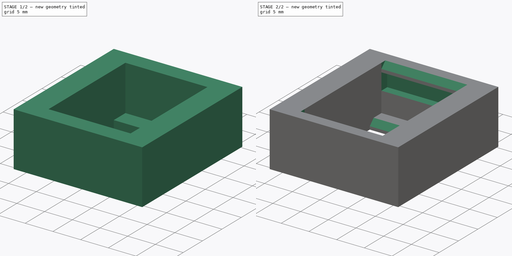
[diagram: build sequence overview — one tinted view per stage of 2, left to right]
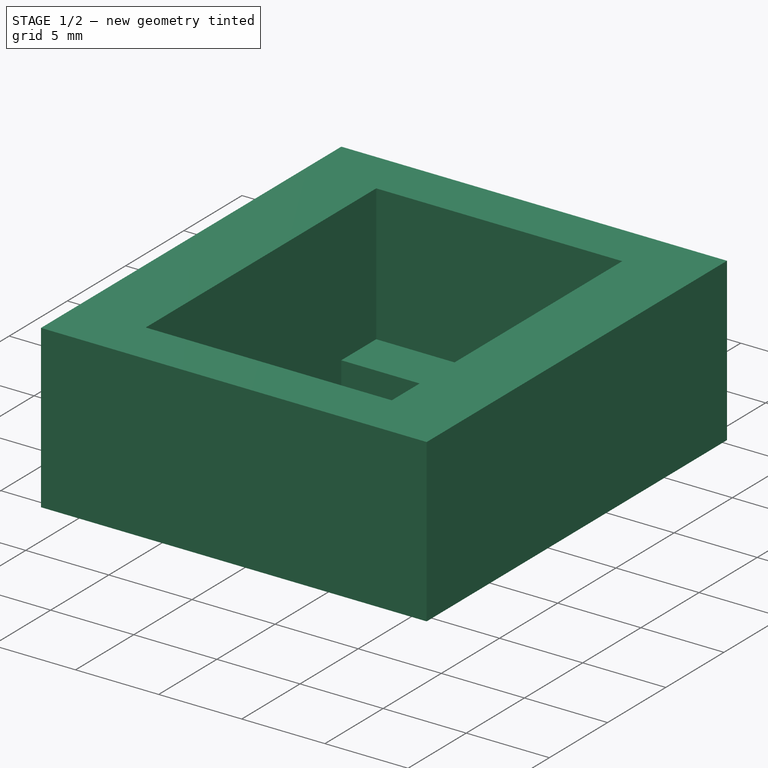
[diagram: stage 1 of 2 — iso view after this stage's code; geometry added in this stage tinted green]
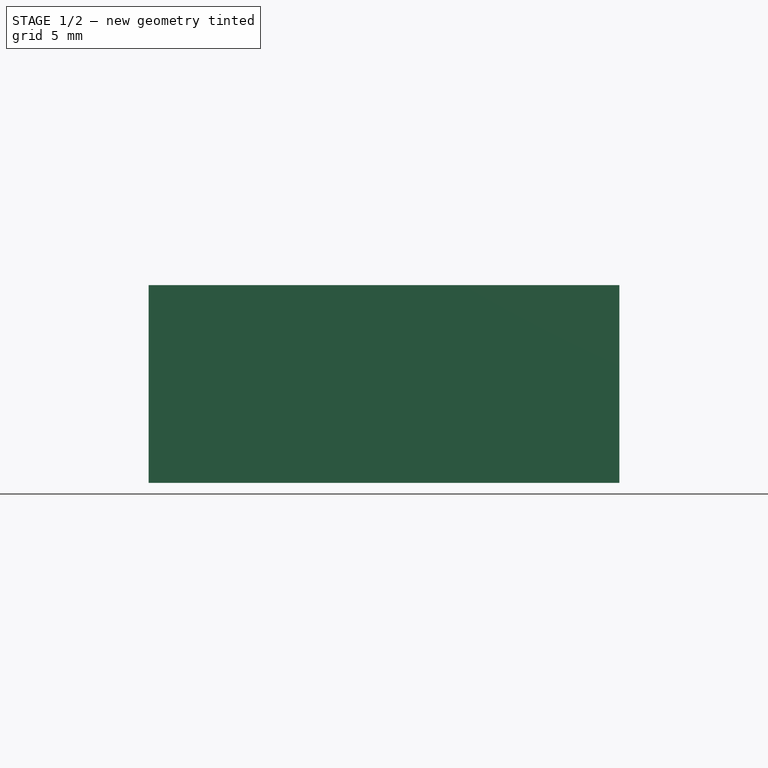
[diagram: stage 1 of 2 — front view after this stage's code; geometry added in this stage tinted green]
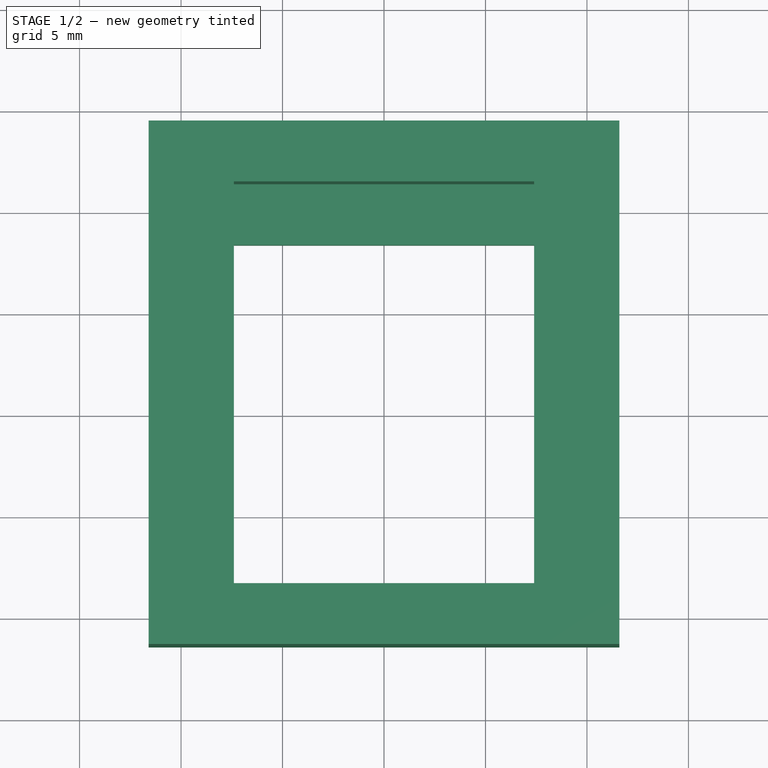
[diagram: stage 1 of 2 — top view after this stage's code; geometry added in this stage tinted green]
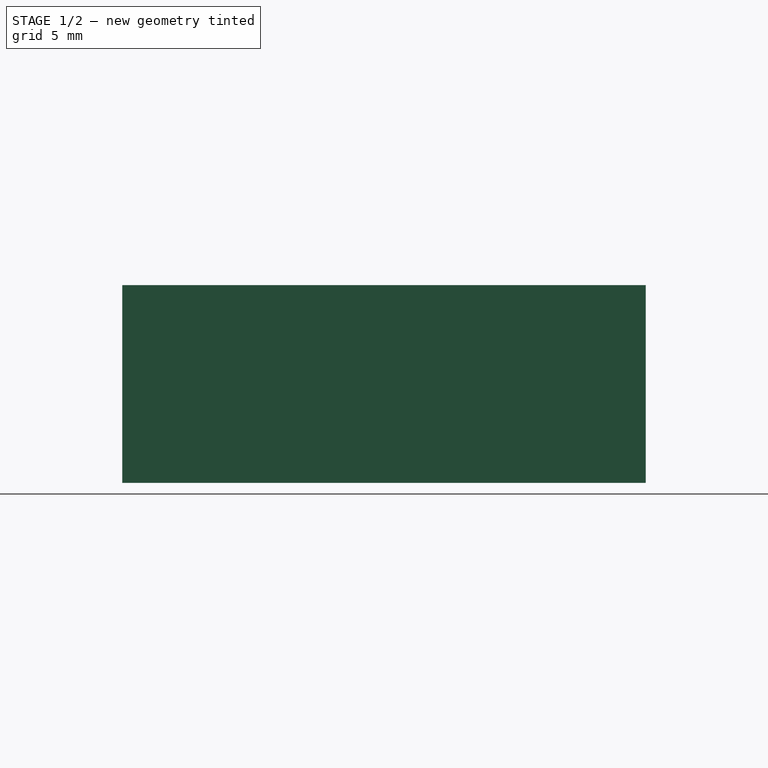
[diagram: stage 1 of 2 — right view after this stage's code; geometry added in this stage tinted green]
FCSTD DOCUMENT  (FreeCAD 1.0R39319 (Git))
Label: Keystone Hole
License: All rights reserved
LicenseURL: https://en.wikipedia.org/wiki/All_rights_reserved
objects: Sketcher::SketchObject×3, PartDesign::Pocket×2, PartDesign::Pad×1, PartDesign::Chamfer×1, PartDesign::Body×1, App::Part×1
note: 19 computed .brp shape members not serialized (recipe doc carries the construction recipe); baked Part::Feature solids carry a one-line shape summary decoded from their .brp

FEATURE [Sketcher::SketchObject] Sketch
  ArcFitTolerance = 1e-06
  AttachmentSupport = -> [XY_Plane001]
  FullyConstrained = true
  MakeInternals = false
  MapMode = 5
  sketch-geometry (13):
    g0: LineSegment StartX=-7.4 StartY=-8.4 StartZ=0 EndX=7.4 EndY=-8.4 EndZ=0
    g1: LineSegment StartX=7.4 StartY=-8.4 StartZ=0 EndX=7.4 EndY=8.4 EndZ=0
    g2: LineSegment StartX=7.4 StartY=8.4 StartZ=0 EndX=-7.4 EndY=8.4 EndZ=0
    g3: LineSegment StartX=-7.4 StartY=8.4 StartZ=0 EndX=-7.4 EndY=-8.4 EndZ=0
    g4: GeomPoint [constr] X=0 Y=0 Z=0
    g5: LineSegment [constr] StartX=-7.4 StartY=-8.4 StartZ=0 EndX=7.4 EndY=-8.4 EndZ=0
    g6: LineSegment [constr] StartX=7.4 StartY=-8.4 StartZ=0 EndX=7.4 EndY=11.4 EndZ=0
    g7: LineSegment [constr] StartX=7.4 StartY=11.4 StartZ=0 EndX=-7.4 EndY=11.4 EndZ=0
    g8: LineSegment [constr] StartX=-7.4 StartY=11.4 StartZ=0 EndX=-7.4 EndY=-8.4 EndZ=0
    g9: LineSegment StartX=-11.6 StartY=14.4 StartZ=0 EndX=-11.6 EndY=-11.4 EndZ=0
    g10: LineSegment StartX=-11.6 StartY=-11.4 StartZ=0 EndX=11.6 EndY=-11.4 EndZ=0
    g11: LineSegment StartX=11.6 StartY=-11.4 StartZ=0 EndX=11.6 EndY=14.4 EndZ=0
    g12: LineSegment StartX=11.6 StartY=14.4 StartZ=0 EndX=-11.6 EndY=14.4 EndZ=0
  constraints (35):
    c: Coincident(g0,g1)
    c: Coincident(g1,g2)
    c: Coincident(g2,g3)
    c: Coincident(g3,g0)
    c: Horizontal(g0)
    c: Horizontal(g2)
    c: Vertical(g1)
    c: Vertical(g3)
    c: Symmetric(g2,g0,g4)
    c: Distance(g1,g3) = 14.8
    c: Distance(g0,g2) = 16.8
    c: Coincident(g4,g-1)
    c: Coincident(g5,g6)
    c: Coincident(g6,g7)
    c: Coincident(g7,g8)
    c: Coincident(g8,g5)
    c: Horizontal(g5)
    c: Horizontal(g7)
    c: Vertical(g6)
    c: Vertical(g8)
    c: Coincident(g5,g0)
    c: Equal(g7,g2)
    c: DistanceY(g8,g8) = 19.8
    c: Coincident(g9,g10)
    c: Coincident(g10,g11)
    c: Coincident(g11,g12)
    c: Coincident(g12,g9)
    c: Vertical(g9)
    c: Vertical(g11)
    c: Horizontal(g10)
    c: Horizontal(g12)
    c: Distance(g11,g6) = 4.2
    c: DistanceY(g6,g11) = 3
    c: DistanceY(g10,g0) = 3
    c: DistanceX(g9,g7) = 4.2
FEATURE [PartDesign::Pad] Pad
  Direction = (0,0,1)
  Length = 9.75
  Length2 = 10
  Profile = -> Sketch
  ReferenceAxis = -> Sketch [N_Axis]
  Refine = true
  Suppressed = false
  Type = 0
FEATURE [Sketcher::SketchObject] Sketch001
  ArcFitTolerance = 1e-06
  AttachmentSupport = -> [Pad]
  ExternalGeometry = -> [Pad]
  FullyConstrained = true
  MakeInternals = false
  MapMode = 5
  Placement = pos=(0,0,9.75) rot=(0,0,1;0rad)
  sketch-geometry (4):
    g0: LineSegment StartX=-7.4 StartY=-8.4 StartZ=0 EndX=7.4 EndY=-8.4 EndZ=0
    g1: LineSegment StartX=7.4 StartY=-8.4 StartZ=0 EndX=7.4 EndY=11.4 EndZ=0
    g2: LineSegment StartX=7.4 StartY=11.4 StartZ=0 EndX=-7.4 EndY=11.4 EndZ=0
    g3: LineSegment StartX=-7.4 StartY=11.4 StartZ=0 EndX=-7.4 EndY=-8.4 EndZ=0
  constraints (11):
    c: Coincident(g0,g1)
    c: Coincident(g1,g2)
    c: Coincident(g2,g3)
    c: Coincident(g3,g0)
    c: Horizontal(g0)
    c: Horizontal(g2)
    c: Vertical(g1)
    c: Vertical(g3)
    c: Distance(g0,g2) = 19.8
    c: Coincident(g0,g-3)
    c: PointOnObject(g-3,g1)
FEATURE [PartDesign::Pocket] Pocket
  BaseFeature = -> Pad
  Direction = (0,0,-1)
  Length = 8.2
  Length2 = 5
  Profile = -> Sketch001
  ReferenceAxis = -> Sketch001 [N_Axis]
  Refine = true
  Suppressed = false
  Type = 0
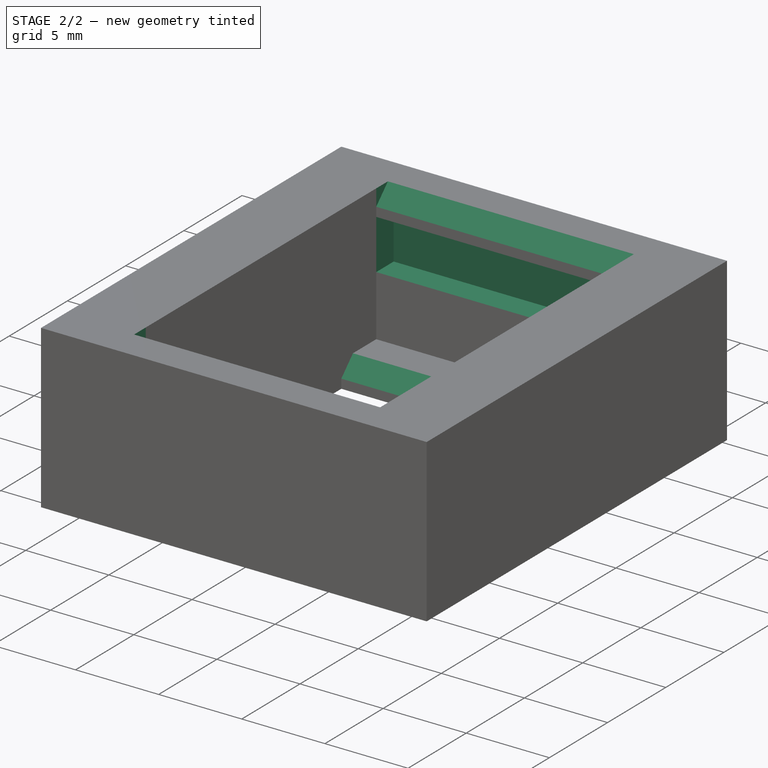
[diagram: stage 2 of 2 — iso view after this stage's code; geometry added in this stage tinted green]
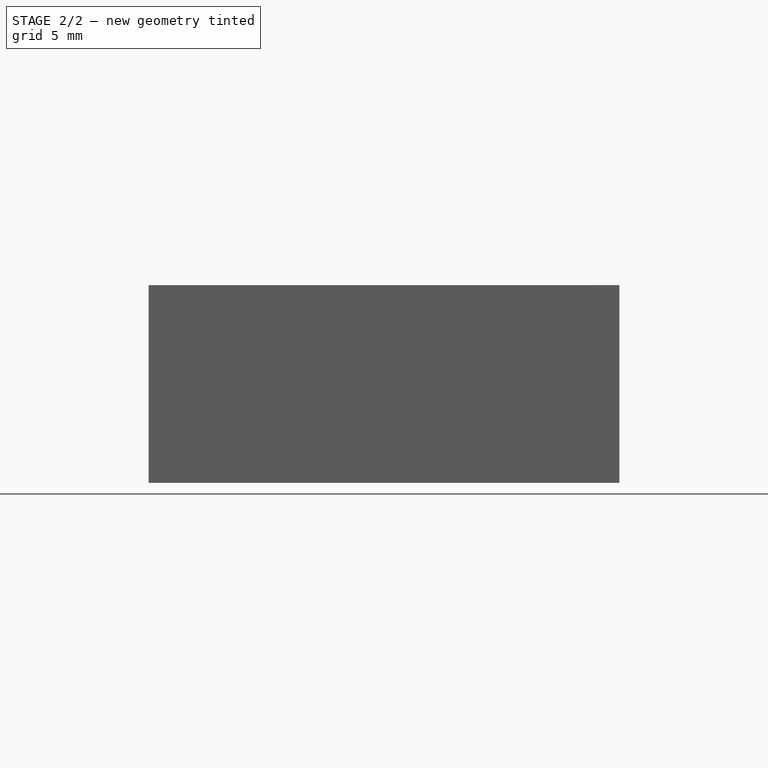
[diagram: stage 2 of 2 — front view after this stage's code; geometry added in this stage tinted green]
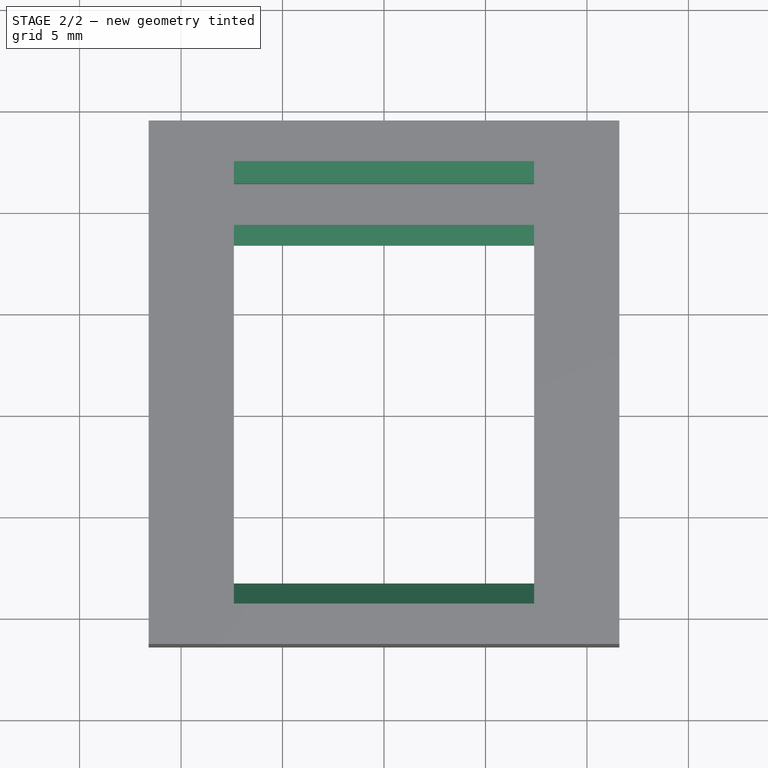
[diagram: stage 2 of 2 — top view after this stage's code; geometry added in this stage tinted green]
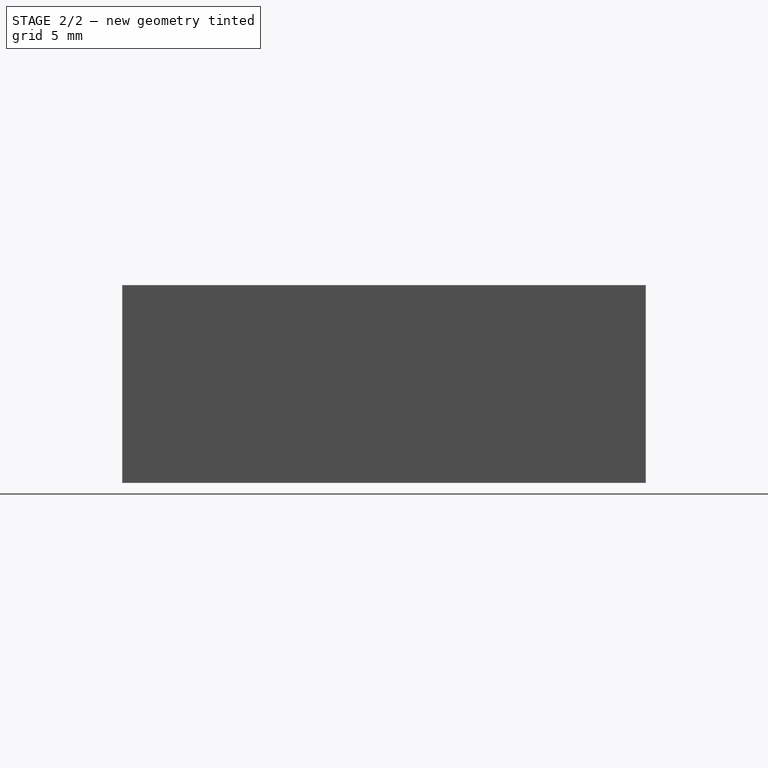
[diagram: stage 2 of 2 — right view after this stage's code; geometry added in this stage tinted green]
FEATURE [Sketcher::SketchObject] Sketch002
  ArcFitTolerance = 1e-06
  AttachmentSupport = -> [Pocket]
  ExternalGeometry = -> [Pocket]
  FullyConstrained = true
  MakeInternals = false
  MapMode = 5
  Placement = pos=(11.6,0,0) rot=(0.57735,0.57735,0.57735;2.0944rad)
  sketch-geometry (8):
    g0: LineSegment StartX=-9.9 StartY=8.2 StartZ=0 EndX=-9.9 EndY=5.2 EndZ=0
    g1: LineSegment StartX=-9.9 StartY=5.2 StartZ=0 EndX=-8.4 EndY=5.2 EndZ=0
    g2: LineSegment StartX=-8.4 StartY=5.2 StartZ=0 EndX=-8.4 EndY=8.2 EndZ=0
    g3: LineSegment StartX=-8.4 StartY=8.2 StartZ=0 EndX=-9.9 EndY=8.2 EndZ=0
    g4: LineSegment StartX=11.4 StartY=8.2 StartZ=0 EndX=11.4 EndY=5.2 EndZ=0
    g5: LineSegment StartX=11.4 StartY=5.2 StartZ=0 EndX=12.9 EndY=5.2 EndZ=0
    g6: LineSegment StartX=12.9 StartY=5.2 StartZ=0 EndX=12.9 EndY=8.2 EndZ=0
    g7: LineSegment StartX=12.9 StartY=8.2 StartZ=0 EndX=11.4 EndY=8.2 EndZ=0
  constraints (24):
    c: Coincident(g0,g1)
    c: Coincident(g1,g2)
    c: Coincident(g2,g3)
    c: Coincident(g3,g0)
    c: Vertical(g0)
    c: Vertical(g2)
    c: Horizontal(g1)
    c: Horizontal(g3)
    c: Distance(g0,g2) = 1.5
    c: Distance(g1,g3) = 3
    c: Coincident(g4,g5)
    c: Coincident(g5,g6)
    c: Coincident(g6,g7)
    c: Coincident(g7,g4)
    c: Vertical(g4)
    c: Vertical(g6)
    c: Horizontal(g5)
    c: Horizontal(g7)
    c: Equal(g6,g2)
    c: Equal(g7,g3)
    c: Distance(g2,g4) = 19.8
    c: PointOnObject(g2,g7)
    c: DistanceY(g-1,g2) = 8.2
    c: DistanceX(g-3,g1) = 3
FEATURE [PartDesign::Pocket] Pocket001
  BaseFeature = -> Pocket
  Direction = (-1,0,0)
  Length = 19
  Length2 = -4.2
  Profile = -> Sketch002
  ReferenceAxis = -> Sketch002 [N_Axis]
  Refine = true
  Suppressed = false
  Type = 4
FEATURE [PartDesign::Chamfer] Chamfer
  Angle = 45
  Base = -> Pocket001 [Edge7,Edge26,Edge24]
  BaseFeature = -> Pocket001
  ChamferType = 0
  FlipDirection = false
  Refine = true
  Size = 1
  Size2 = 1
  SupportTransform = false
  Suppressed = false
  UseAllEdges = false
FEATURE [PartDesign::Body] Body
  AllowCompound = false
  Group = -> [Sketch,Pad,Sketch001,Pocket,Sketch002,Pocket001,Chamfer]
  Origin = -> Origin001
  Tip = -> Chamfer
FEATURE [App::Part] Part
  Group = -> [Body]
  Origin = -> Origin
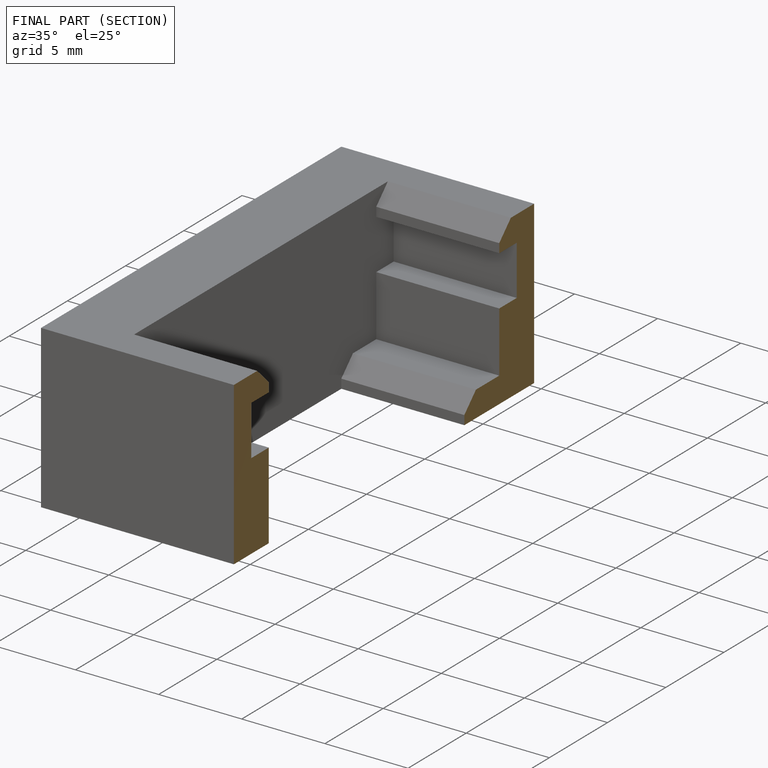
[diagram: finished part — half-section view (interior)]
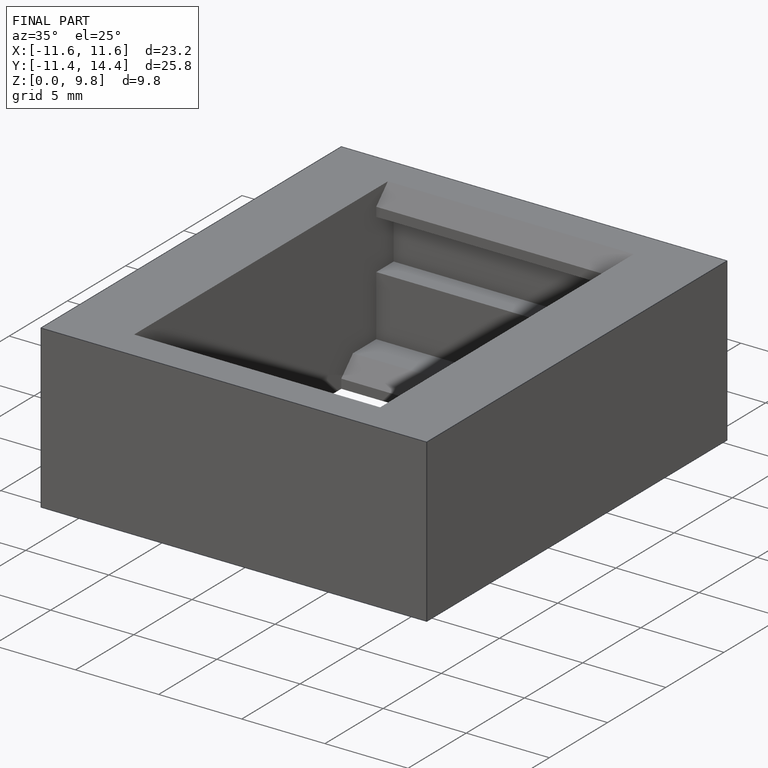
[diagram: finished part — iso view with bounding-box wireframe]
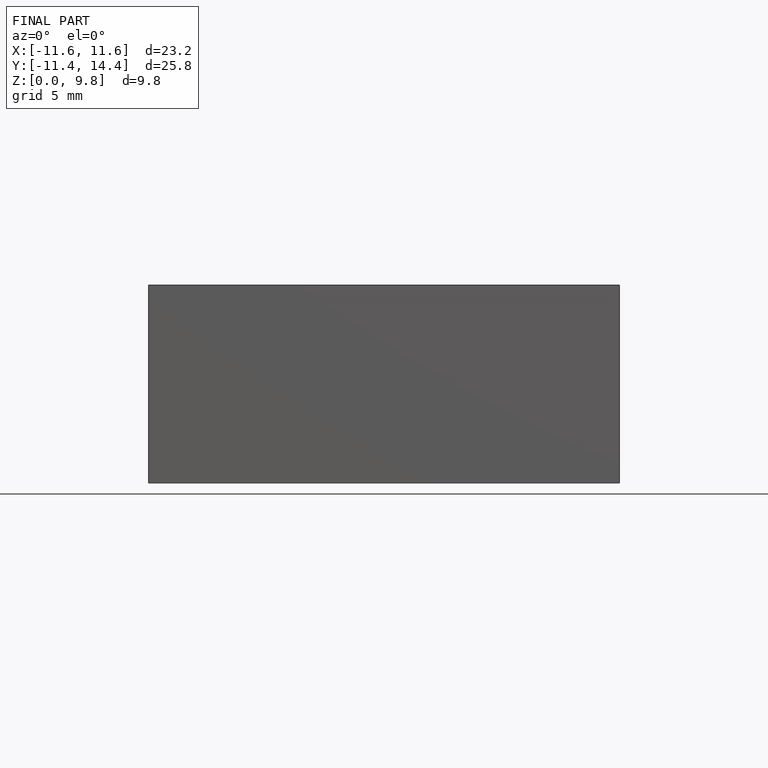
[diagram: finished part — front view with bounding-box wireframe]
